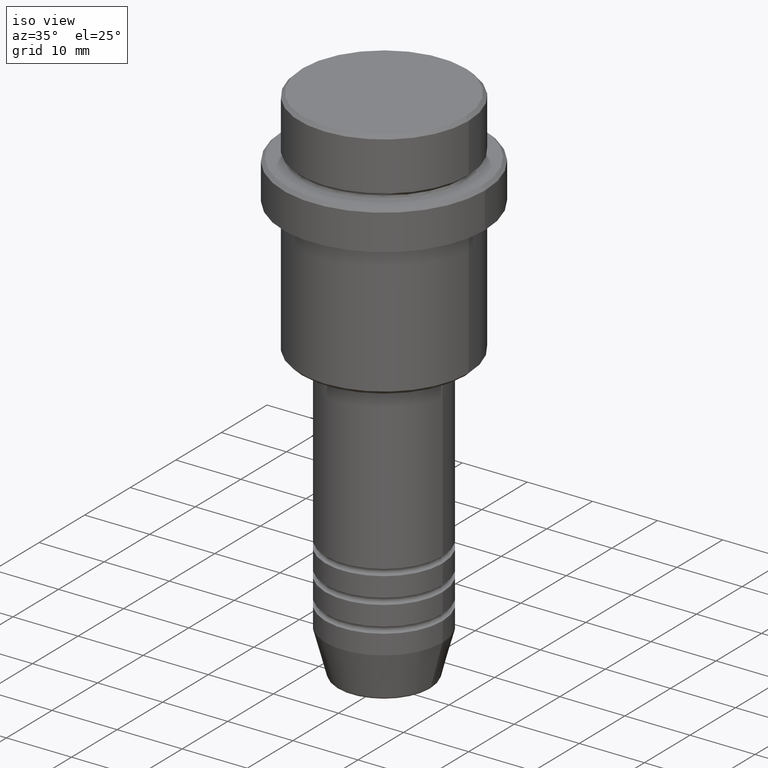
[diagram: clean part render]
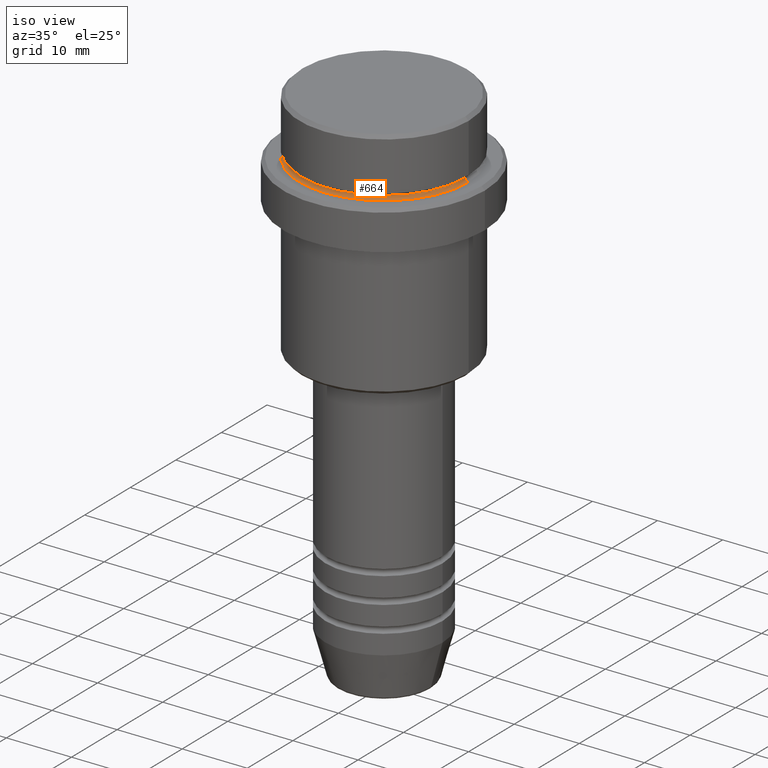
[diagram: same view with one face highlighted and labeled with its STEP entity id]
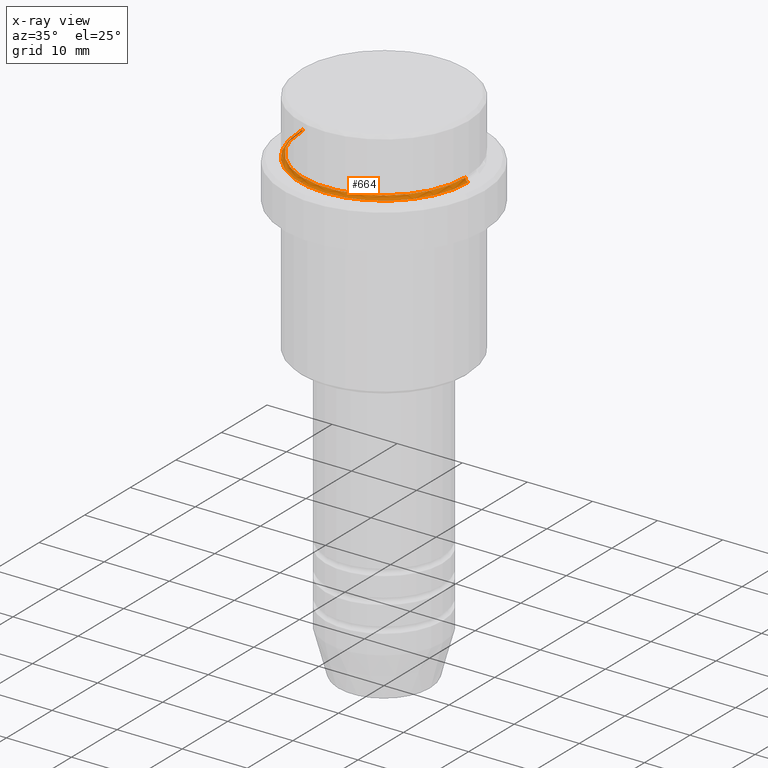
[diagram: x-ray of the same camera — body ghosted, the highlighted face saturated]
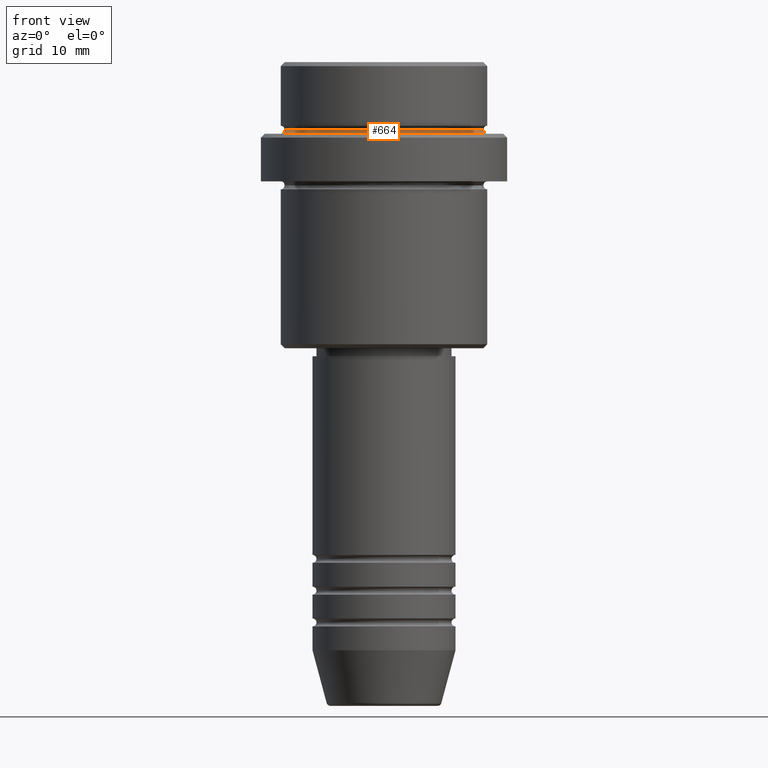
[diagram: same view with one face highlighted and labeled with its STEP entity id]
A machine part, iso view. The second image highlights one B-rep face of the part: STEP entity #664.
The next image is the same camera in x-ray: the body ghosted, the highlighted face saturated — about 2% of this face is hidden behind the body in this view.
A second angle (front view) of the same face is appended — the face is thin or edge-on in the first view.
In plain terms, the highlighted toroidal blend (fillet) surface has major radius 13 mm and minor (blend) radius 0.5 mm.
Its self-contained STEP definition (entity closure, byte-faithful):
#31 = EDGE_CURVE ( 'NONE', #1008, #783, #268, .T. ) ;
#48 = DIRECTION ( 'NONE',  ( -0.000000000000000000, -0.000000000000000000, 1.000000000000000000 ) ) ;
#68 = CARTESIAN_POINT ( 'NONE',  ( 0.000000000000000000, 0.000000000000000000, -8.499999999999998224 ) ) ;
#94 = ORIENTED_EDGE ( 'NONE', *, *, #120, .F. ) ;
#120 = EDGE_CURVE ( 'NONE', #444, #783, #1228, .T. ) ;
#150 = ORIENTED_EDGE ( 'NONE', *, *, #31, .T. ) ;
#188 = EDGE_CURVE ( 'NONE', #1080, #444, #201, .T. ) ;
#201 = CIRCLE ( 'NONE', #592, 0.5000000000000004441 ) ;
#206 = DIRECTION ( 'NONE',  ( 0.000000000000000000, 0.000000000000000000, -1.000000000000000000 ) ) ;
#267 = CARTESIAN_POINT ( 'NONE',  ( 0.000000000000000000, 0.000000000000000000, -8.499999999999998224 ) ) ;
#268 = CIRCLE ( 'NONE', #295, 0.5000000000000004441 ) ;
#284 = DIRECTION ( 'NONE',  ( 1.000000000000000000, 0.000000000000000000, 0.000000000000000000 ) ) ;
#295 = AXIS2_PLACEMENT_3D ( 'NONE', #578, #787, #1013 ) ;
#326 = CARTESIAN_POINT ( 'NONE',  ( 12.99999999999999467, 0.000000000000000000, -8.499999999999998224 ) ) ;
#373 = EDGE_LOOP ( 'NONE', ( #720, #150, #94, #616 ) ) ;
#432 = TOROIDAL_SURFACE ( 'NONE', #570, 12.99999999999999467, 0.5000000000000000000 ) ;
#444 = VERTEX_POINT ( 'NONE', #724 ) ;
#478 = CARTESIAN_POINT ( 'NONE',  ( 12.49999999999999289, 0.000000000000000000, -8.499999999999998224 ) ) ;
#570 = AXIS2_PLACEMENT_3D ( 'NONE', #68, #1347, #284 ) ;
#578 = CARTESIAN_POINT ( 'NONE',  ( -12.99999999999999467, 1.592040838891558504E-15, -8.499999999999998224 ) ) ;
#592 = AXIS2_PLACEMENT_3D ( 'NONE', #326, #1304, #1192 ) ;
#616 = ORIENTED_EDGE ( 'NONE', *, *, #188, .F. ) ;
#638 = EDGE_CURVE ( 'NONE', #1008, #1080, #1408, .T. ) ;
#662 = CARTESIAN_POINT ( 'NONE',  ( 0.000000000000000000, 0.000000000000000000, -9.000000000000000000 ) ) ;
#664 = ADVANCED_FACE ( 'NONE', ( #925 ), #432, .F. ) ;
#720 = ORIENTED_EDGE ( 'NONE', *, *, #638, .F. ) ;
#724 = CARTESIAN_POINT ( 'NONE',  ( 12.99999999999999467, 0.000000000000000000, -9.000000000000000000 ) ) ;
#767 = CARTESIAN_POINT ( 'NONE',  ( -12.49999999999999289, 1.561424668912874519E-15, -8.499999999999998224 ) ) ;
#783 = VERTEX_POINT ( 'NONE', #1380 ) ;
#787 = DIRECTION ( 'NONE',  ( 1.224646799147353207E-16, 1.000000000000000000, 0.000000000000000000 ) ) ;
#798 = AXIS2_PLACEMENT_3D ( 'NONE', #267, #48, #1256 ) ;
#925 = FACE_OUTER_BOUND ( 'NONE', #373, .T. ) ;
#1008 = VERTEX_POINT ( 'NONE', #767 ) ;
#1013 = DIRECTION ( 'NONE',  ( -1.000000000000000000, 1.224646799147353454E-16, 0.000000000000000000 ) ) ;
#1080 = VERTEX_POINT ( 'NONE', #478 ) ;
#1111 = AXIS2_PLACEMENT_3D ( 'NONE', #662, #206, #1397 ) ;
#1192 = DIRECTION ( 'NONE',  ( 0.000000000000000000, 0.000000000000000000, -1.000000000000000000 ) ) ;
#1228 = CIRCLE ( 'NONE', #1111, 12.99999999999999467 ) ;
#1256 = DIRECTION ( 'NONE',  ( 1.000000000000000000, 0.000000000000000000, 0.000000000000000000 ) ) ;
#1304 = DIRECTION ( 'NONE',  ( 0.000000000000000000, -1.000000000000000000, 0.000000000000000000 ) ) ;
#1347 = DIRECTION ( 'NONE',  ( -0.000000000000000000, -0.000000000000000000, 1.000000000000000000 ) ) ;
#1380 = CARTESIAN_POINT ( 'NONE',  ( -12.99999999999999467, 1.592040838891558504E-15, -9.000000000000000000 ) ) ;
#1397 = DIRECTION ( 'NONE',  ( 1.000000000000000000, 0.000000000000000000, 0.000000000000000000 ) ) ;
#1408 = CIRCLE ( 'NONE', #798, 12.49999999999999289 ) ;